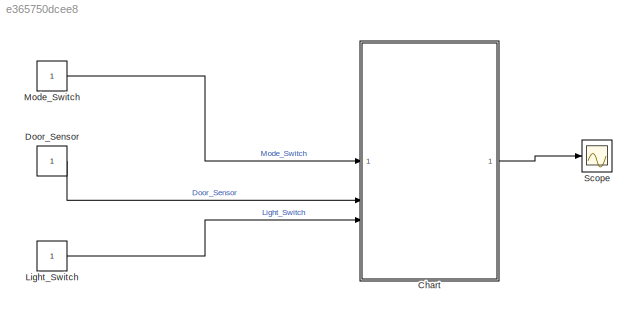
MODEL slx_e365750dcee8
KIND model
CONFIG AbsTol = auto
CONFIG EnableMultiTasking = off
CONFIG FixedStep = auto
CONFIG MaxStep = auto
CONFIG MinStep = auto
CONFIG RelTol = 1e-3
CONFIG SampleTimeConstraint = Unconstrained
CONFIG SolverName = VariableStepAuto
CONFIG StartTime = 0.0
CONFIG StopTime = 10.0
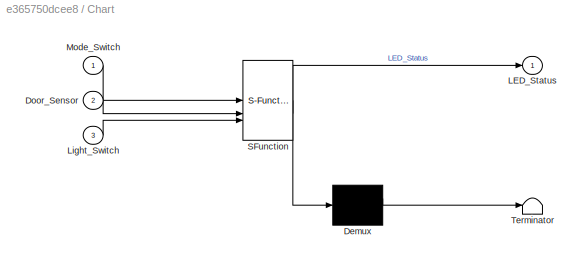
BLOCK [SubSystem] Chart
  ErrorFcn = Stateflow.Translate.translate
  PermitHierarchicalResolution = ExplicitOnly
  SFBlockType = Chart
  TreatAsAtomicUnit = on
BLOCK [Demux] Chart/ Demux 
  Outputs = 1
BLOCK [S-Function] Chart/ SFunction 
  EnableBusSupport = off
  FunctionName = sf_sfun
  PortCounts = [3 2]
  SFcnIsStateOwnerBlock = off
  SFunctionDeploymentMode = off
  Tag = Stateflow S-Function 3
BLOCK [Terminator] Chart/ Terminator 
BLOCK [Inport] Chart/Door_Sensor
  Port = 2
BLOCK [Outport] Chart/LED_Status
BLOCK [Inport] Chart/Light_Switch
  Port = 3
BLOCK [Inport] Chart/Mode_Switch
BLOCK [Constant] Door_Sensor
BLOCK [Constant] Light_Switch
BLOCK [Constant] Mode_Switch
BLOCK [Scope] Scope
  Floating = off
  GraphicalSettings = {"GraphicalSettings":{"LegacySettings":true,"Style":{"Style":{"PlotType":"Auto"}}}}
  NumInputPorts = 1
  WasSavedAsWebScope = on
LINE Chart:1 -> Scope:1
LINE Door_Sensor:1 -> Chart:2
LINE Light_Switch:1 -> Chart:3
LINE Mode_Switch:1 -> Chart:1
CHART Chart states=2 transitions=3
  STATE_LABEL 'Manual_Mode\n\nduring:\nif (Light_Switch == 1)\n    LED_Status = 1;\nelse\n    LED_Status = 0;\nend'
  STATE_LABEL 'Auto_Mode \n\nduring:\nif (Door_Sensor == 1)\n    LED_Status = 1;\nelse\n    LED_Status = 0;\nend'
CHART  states=0 transitions=0
